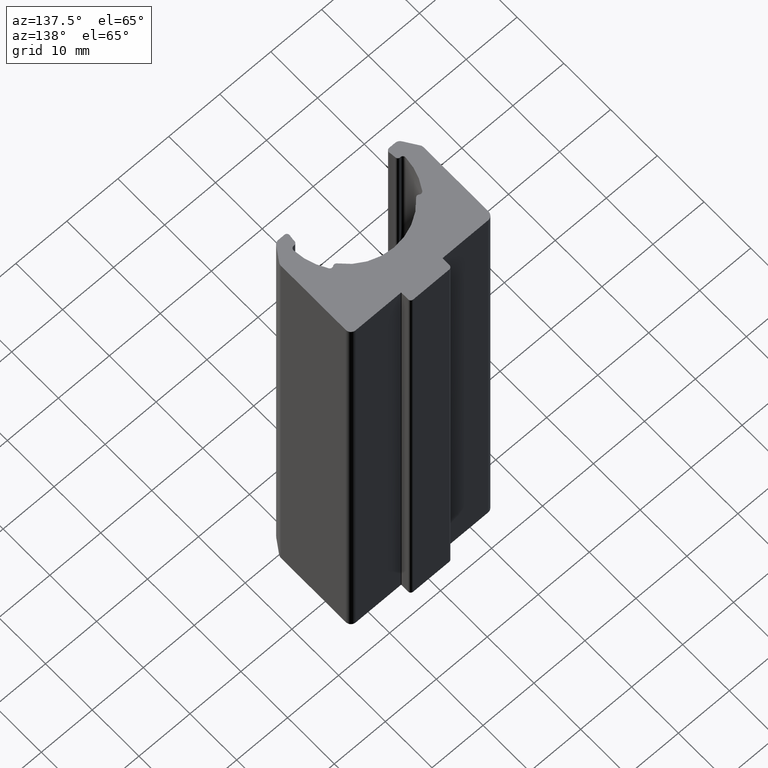
[diagram: clean part render]
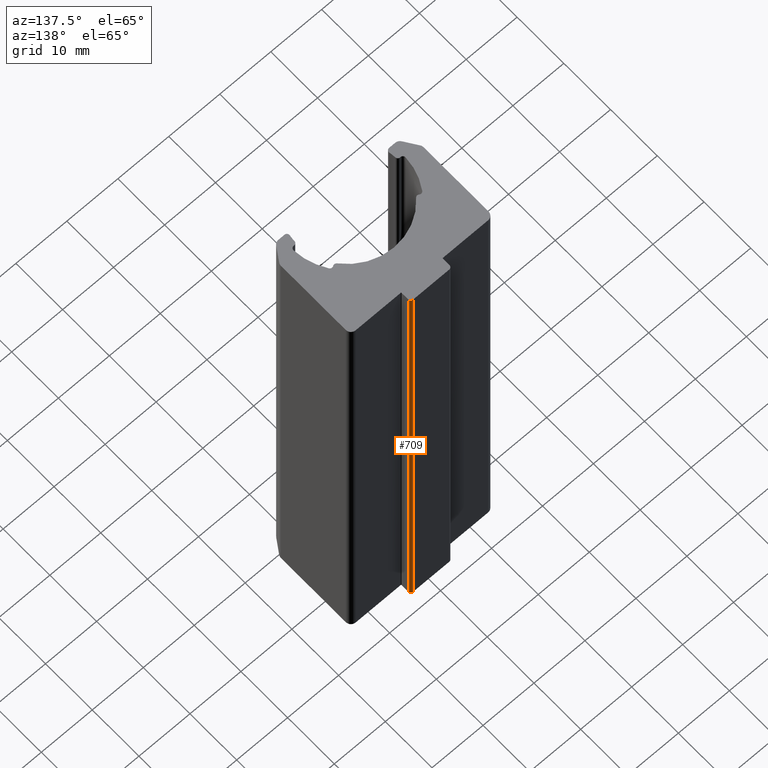
[diagram: same view with one face highlighted and labeled with its STEP entity id]
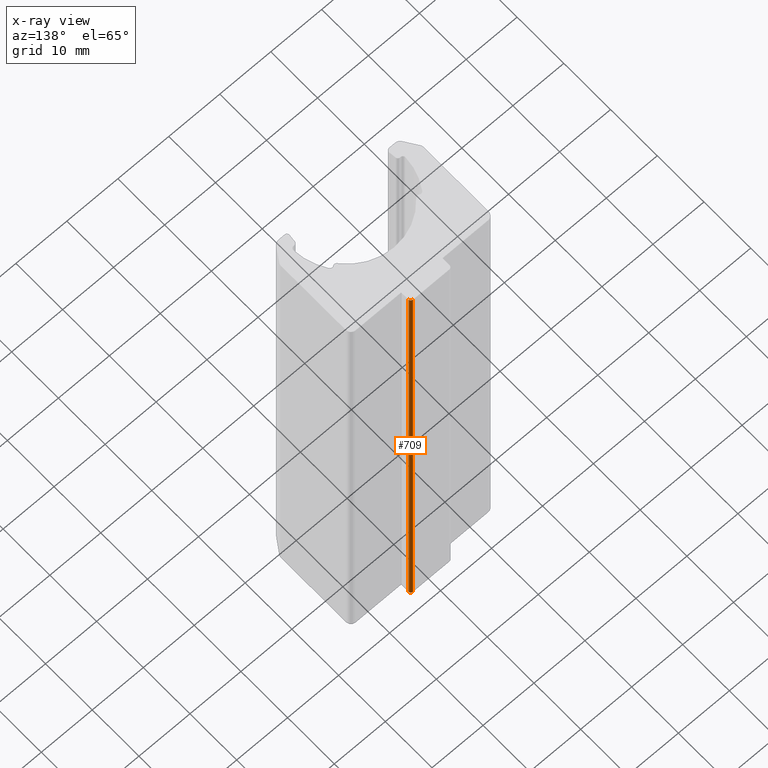
[diagram: x-ray of the same camera — body ghosted, the highlighted face saturated]
A machine part, auxiliary view. The second image highlights one B-rep face of the part: STEP entity #709.
The next image is the same camera in x-ray: the body ghosted, the highlighted face saturated — about 0% of this face is hidden behind the body in this view.
In plain terms, the highlighted cylindrical surface (edge-blend (fillet) strip) has radius 0.5 mm, axis along (0, 0, 1).
Its self-contained STEP definition (entity closure, byte-faithful):
#46=FACE_OUTER_BOUND('',#84,.T.);
#84=EDGE_LOOP('',(#522,#523,#524,#525));
#134=LINE('',#1166,#192);
#135=LINE('',#1172,#193);
#192=VECTOR('',#935,100.);
#193=VECTOR('',#942,100.);
#244=CIRCLE('',#774,0.499999999998);
#245=CIRCLE('',#775,0.499999999998);
#306=VERTEX_POINT('',#1162);
#307=VERTEX_POINT('',#1164);
#308=VERTEX_POINT('',#1168);
#309=VERTEX_POINT('',#1170);
#396=EDGE_CURVE('',#306,#307,#134,.T.);
#397=EDGE_CURVE('',#306,#308,#244,.T.);
#398=EDGE_CURVE('',#309,#307,#245,.T.);
#399=EDGE_CURVE('',#308,#309,#135,.T.);
#522=ORIENTED_EDGE('',*,*,#397,.F.);
#523=ORIENTED_EDGE('',*,*,#396,.T.);
#524=ORIENTED_EDGE('',*,*,#398,.F.);
#525=ORIENTED_EDGE('',*,*,#399,.F.);
#678=CYLINDRICAL_SURFACE('',#773,0.499999999998);
#709=ADVANCED_FACE('',(#46),#678,.T.);
#773=AXIS2_PLACEMENT_3D('',#1167,#936,#937);
#774=AXIS2_PLACEMENT_3D('',#1169,#938,#939);
#775=AXIS2_PLACEMENT_3D('',#1171,#940,#941);
#935=DIRECTION('',(0.,0.,1.));
#936=DIRECTION('center_axis',(0.,0.,1.));
#937=DIRECTION('ref_axis',(-1.,3.55271367881471E-13,0.));
#938=DIRECTION('center_axis',(0.,0.,-1.));
#939=DIRECTION('ref_axis',(-1.,3.55271367881471E-13,0.));
#940=DIRECTION('center_axis',(0.,0.,1.));
#941=DIRECTION('ref_axis',(-1.,3.55271367881471E-13,0.));
#942=DIRECTION('',(0.,0.,1.));
#1162=CARTESIAN_POINT('',(3.55000087311911,18.0000002336855,0.));
#1164=CARTESIAN_POINT('',(3.55000087311911,18.0000002336855,100.));
#1166=CARTESIAN_POINT('',(3.55000087311911,18.0000002336855,0.));
#1167=CARTESIAN_POINT('Origin',(3.5500008731191,17.5000002336875,0.));
#1168=CARTESIAN_POINT('',(4.0500008731171,17.5000002336873,0.));
#1169=CARTESIAN_POINT('Origin',(3.5500008731191,17.5000002336875,0.));
#1170=CARTESIAN_POINT('',(4.0500008731171,17.5000002336873,100.));
#1171=CARTESIAN_POINT('Origin',(3.5500008731191,17.5000002336875,100.));
#1172=CARTESIAN_POINT('',(4.0500008731171,17.5000002336873,0.));